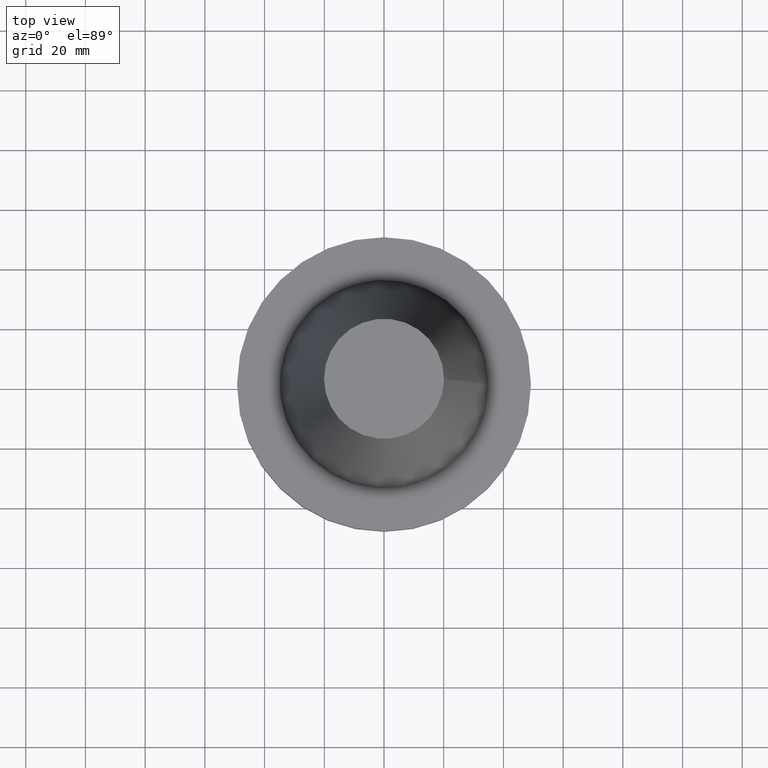
[diagram: clean part render]
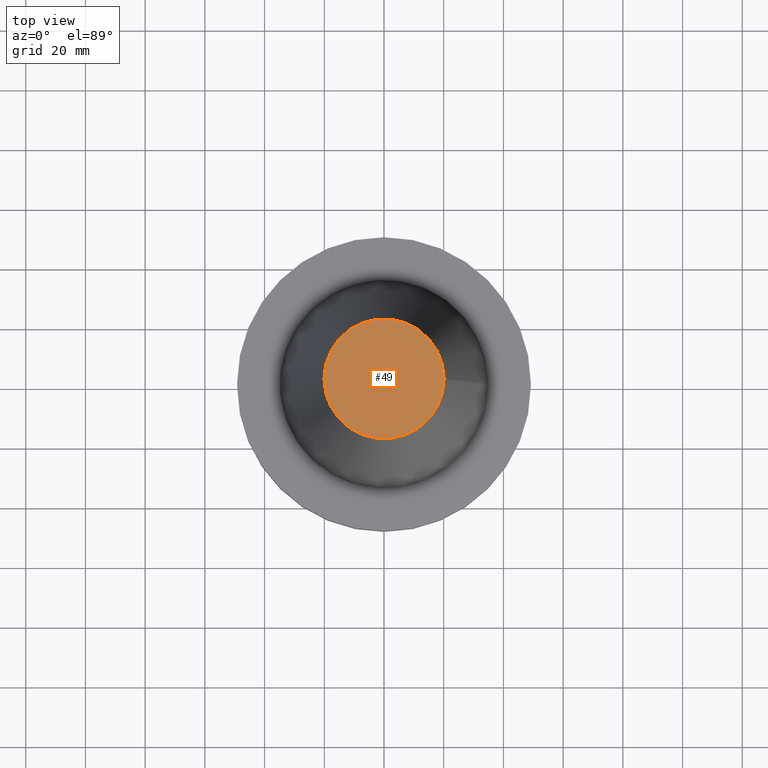
[diagram: same view with one face highlighted and labeled with its STEP entity id]
A machine part, top view. The second image highlights one B-rep face of the part: STEP entity #49.
In plain terms, the highlighted planar face has unit normal (0, 0, -1).
Its self-contained STEP definition (entity closure, byte-faithful):
#49 = ADVANCED_FACE ( 'NONE', ( #276 ), #129, .F. ) ;
#51 = DIRECTION ( 'NONE',  ( 1.000000000000000000, 0.000000000000000000, 0.000000000000000000 ) ) ;
#67 = CARTESIAN_POINT ( 'NONE',  ( 20.10819343178871321, 0.000000000000000000, 101.5999999999999801 ) ) ;
#71 = DIRECTION ( 'NONE',  ( -1.000000000000000000, 0.000000000000000000, -0.000000000000000000 ) ) ;
#79 = EDGE_CURVE ( 'NONE', #313, #313, #180, .T. ) ;
#118 = EDGE_LOOP ( 'NONE', ( #145 ) ) ;
#121 = AXIS2_PLACEMENT_3D ( 'NONE', #203, #229, #51 ) ;
#129 = PLANE ( 'NONE',  #223 ) ;
#145 = ORIENTED_EDGE ( 'NONE', *, *, #79, .T. ) ;
#180 = CIRCLE ( 'NONE', #121, 20.10819343178871321 ) ;
#203 = CARTESIAN_POINT ( 'NONE',  ( 0.000000000000000000, 0.000000000000000000, 101.5999999999999801 ) ) ;
#223 = AXIS2_PLACEMENT_3D ( 'NONE', #374, #345, #71 ) ;
#229 = DIRECTION ( 'NONE',  ( -0.000000000000000000, -0.000000000000000000, 1.000000000000000000 ) ) ;
#276 = FACE_OUTER_BOUND ( 'NONE', #118, .T. ) ;
#313 = VERTEX_POINT ( 'NONE', #67 ) ;
#345 = DIRECTION ( 'NONE',  ( 0.000000000000000000, 0.000000000000000000, -1.000000000000000000 ) ) ;
#374 = CARTESIAN_POINT ( 'NONE',  ( 0.000000000000000000, 20.10819343178871321, 101.5999999999999943 ) ) ;